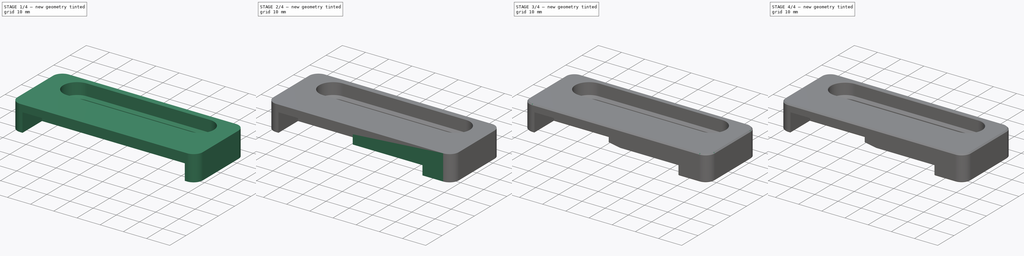
[diagram: build sequence overview — one tinted view per stage of 4, left to right]
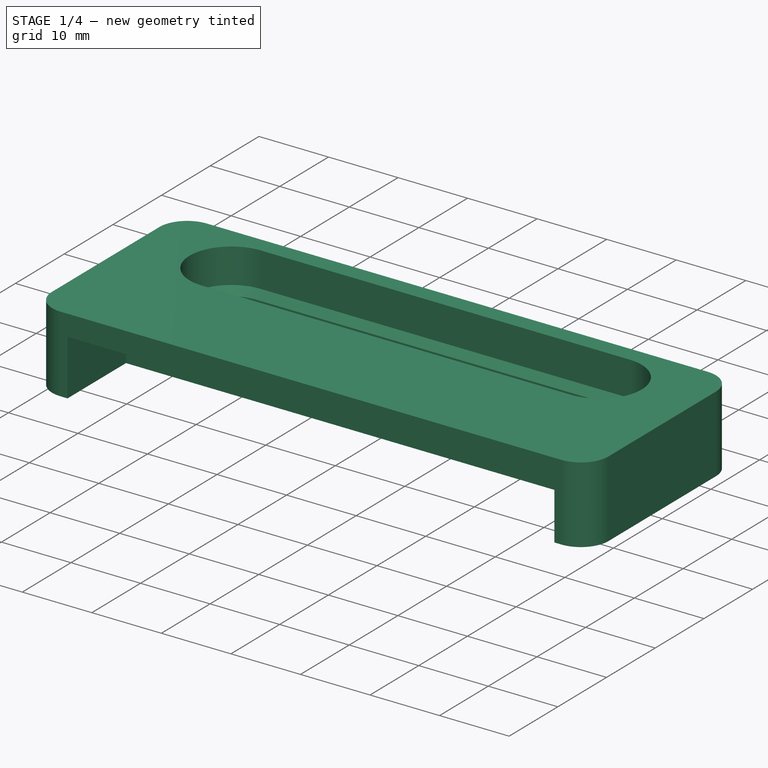
[diagram: stage 1 of 4 — iso view after this stage's code; geometry added in this stage tinted green]
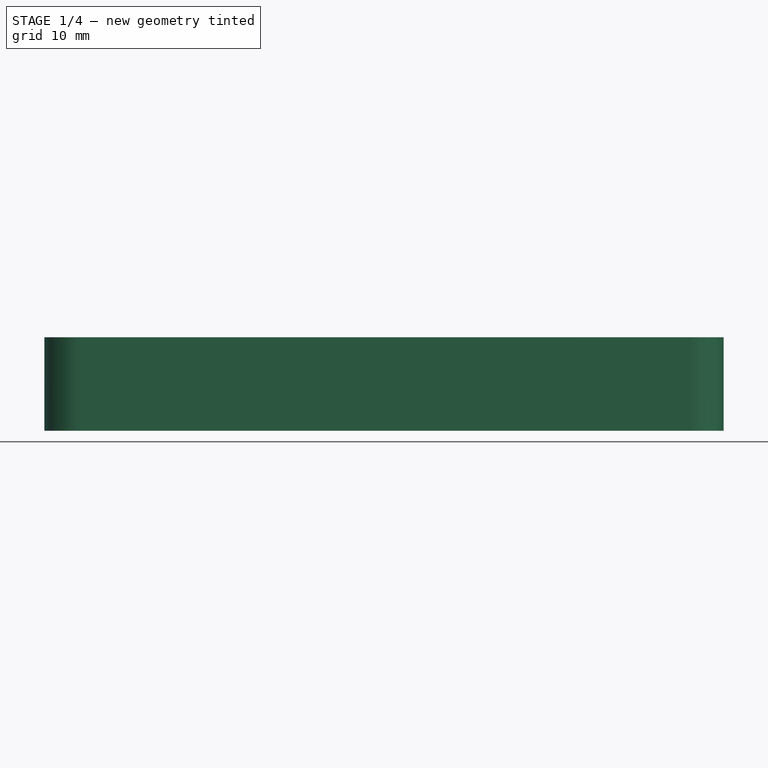
[diagram: stage 1 of 4 — front view after this stage's code; geometry added in this stage tinted green]
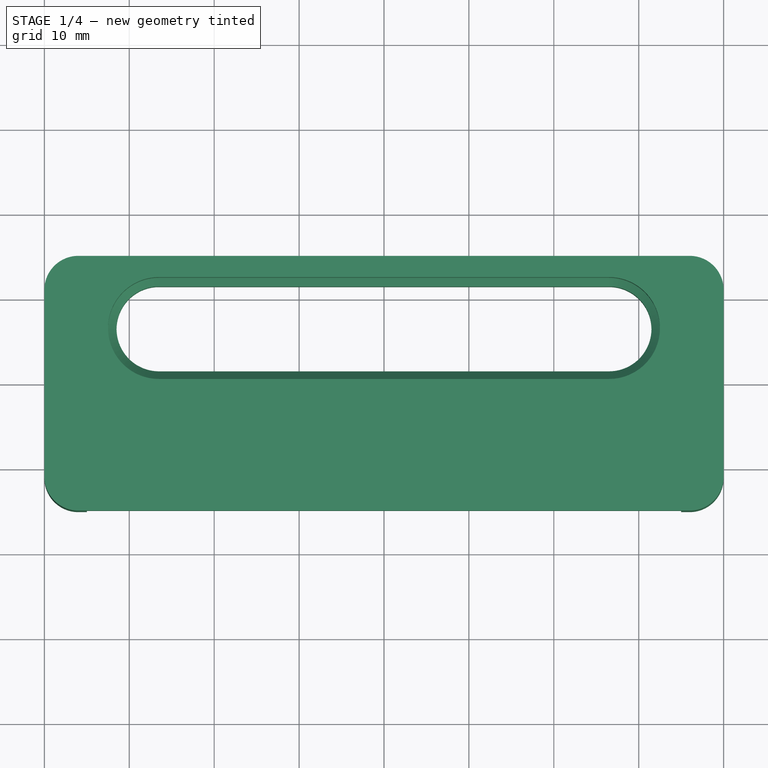
[diagram: stage 1 of 4 — top view after this stage's code; geometry added in this stage tinted green]
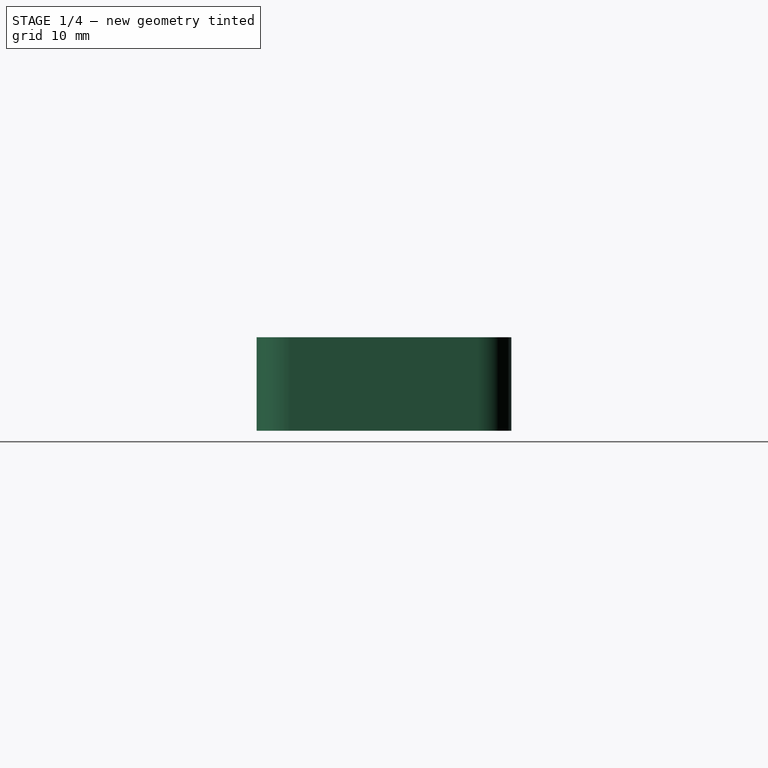
[diagram: stage 1 of 4 — right view after this stage's code; geometry added in this stage tinted green]
FCSTD DOCUMENT  (FreeCAD 0.22R38314 (Git))
Label: Case_Latch
License: All rights reserved
LicenseURL: https://en.wikipedia.org/wiki/All_rights_reserved
objects: Sketcher::SketchObject×6, PartDesign::Chamfer×5, PartDesign::Pad×3, PartDesign::Pocket×2, PartDesign::AdditivePipe×1, PartDesign::Fillet×1, PartDesign::Body×1
note: 43 computed .brp shape members not serialized (recipe doc carries the construction recipe); baked Part::Feature solids carry a one-line shape summary decoded from their .brp

FEATURE [Sketcher::SketchObject] Sketch  label="Top_Face_Sketch"
  AttachmentSupport = -> [XY_Plane]
  FullyConstrained = true
  MapMode = 5
  expr: Constraints[39] = 65 mm - .Constraints.slot_height
  sketch-geometry (16):
    g0: LineSegment StartX=-36 StartY=15 StartZ=0 EndX=36 EndY=15 EndZ=0
    g1: ArcOfCircle CenterX=36 CenterY=11 CenterZ=0 NormalX=0 NormalY=0 NormalZ=1 AngleXU=0 Radius=4 StartAngle=1e-16 EndAngle=1.5708
    g2: LineSegment StartX=40 StartY=11 StartZ=0 EndX=40 EndY=-11 EndZ=0
    g3: ArcOfCircle CenterX=36 CenterY=-11 CenterZ=0 NormalX=0 NormalY=0 NormalZ=1 AngleXU=0 Radius=4 StartAngle=4.71239 EndAngle=6.28319
    g4: LineSegment StartX=36 StartY=-15 StartZ=0 EndX=-36 EndY=-15 EndZ=0
    g5: ArcOfCircle CenterX=-36 CenterY=-11 CenterZ=0 NormalX=0 NormalY=0 NormalZ=1 AngleXU=0 Radius=4 StartAngle=3.14159 EndAngle=4.71239
    g6: LineSegment StartX=-40 StartY=-11 StartZ=0 EndX=-40 EndY=11 EndZ=0
    g7: ArcOfCircle CenterX=-36 CenterY=11 CenterZ=0 NormalX=0 NormalY=0 NormalZ=1 AngleXU=0 Radius=4 StartAngle=1.5708 EndAngle=3.14159
    g8: LineSegment StartX=-36 StartY=-11 StartZ=0 EndX=0 EndY=1.8e-15 EndZ=0
    g9: LineSegment StartX=0 StartY=1.8e-15 StartZ=0 EndX=36 EndY=11 EndZ=0
    g10: ArcOfCircle CenterX=-26.5 CenterY=6.5 CenterZ=0 NormalX=0 NormalY=0 NormalZ=1 AngleXU=0 Radius=6 StartAngle=1.5708 EndAngle=4.71239
    g11: ArcOfCircle CenterX=26.5 CenterY=6.5 CenterZ=0 NormalX=0 NormalY=0 NormalZ=1 AngleXU=0 Radius=6 StartAngle=4.71239 EndAngle=7.85398
    g12: LineSegment StartX=-26.5 StartY=12.5 StartZ=0 EndX=26.5 EndY=12.5 EndZ=0
    g13: LineSegment StartX=-26.5 StartY=0.5 StartZ=0 EndX=26.5 EndY=0.5 EndZ=0
    g14: LineSegment StartX=-26.5 StartY=6.5 StartZ=0 EndX=0 EndY=6.5 EndZ=0
    g15: LineSegment StartX=26.5 StartY=6.5 StartZ=0 EndX=0 EndY=6.5 EndZ=0
  constraints (40):
    c: Horizontal(g0)
    c: Tangent(g0,g1) = 1.5708
    c: Tangent(g1,g2) = 1.5708
    c: Tangent(g2,g3) = 1.5708
    c: Tangent(g3,g4) = 1.5708
    c: Tangent(g4,g5) = 1.5708
    c: Tangent(g5,g6) = 1.5708
    c: Tangent(g6,g7) = 1.5708
    c: Horizontal(g4)
    c: Vertical(g6)
    c: Vertical(g2)
    c: Radius(g5) = 4
    c: Equal(g7,g5)
    c: Equal(g5,g3)
    c: Equal(g5,g1)
    c: Tangent(g7,g0) = 1.5708
    c: Distance(g6,g2) = 80
    c: Distance(g0,g4) = 30
    c: Coincident(g8,g5)
    c: Coincident(g9,g8)
    c: Coincident(g9,g1)
    c: Parallel(g8,g9)
    c: Equal(g9,g8)
    c: Coincident(g8,g-1)
    c: Tangent(g10,g12) = 1.5708
    c: Tangent(g10,g13) = -1.5708
    c: Tangent(g11,g12) = 1.5708
    c: Tangent(g11,g13) = -1.5708
    c: Equal(g10,g11)
    c: Horizontal(g12)
    c: Distance(g12,g13) = 12  'slot_height'
    c: Coincident(g14,g10)
    c: PointOnObject(g14,g-2)
    c: Horizontal(g14)
    c: Coincident(g15,g11)
    c: Coincident(g15,g14)
    c: Equal(g14,g15)
    c: Distance(g0,g12) = 2.5
    c: DistanceY(g11,g11) = 6
    c: DistanceX(g10,g11) = 53
FEATURE [PartDesign::Pad] Pad  label="Main_Pad"
  Direction = (0,0,1)
  Length = 11
  Length2 = 10
  Profile = -> Sketch
  ReferenceAxis = -> Sketch [N_Axis]
  Refine = true
  Suppressed = false
  Type = 0
FEATURE [Sketcher::SketchObject] Sketch001  label="Slot_Chamfer"
  AttachmentSupport = -> [YZ_Plane]
  ExternalGeometry = -> [Sketch]
  FullyConstrained = true
  MapMode = 5
  Placement = pos=(0,0,0) rot=(0.57735,0.57735,0.57735;2.0944rad)
  sketch-geometry (4):
    g0: LineSegment StartX=0.5 StartY=0 StartZ=0 EndX=1.5 EndY=0 EndZ=0
    g1: LineSegment StartX=1.5 StartY=0 StartZ=0 EndX=1.5 EndY=5 EndZ=0
    g2: LineSegment StartX=1.5 StartY=5 StartZ=0 EndX=0.5 EndY=6 EndZ=0
    g3: LineSegment StartX=0.5 StartY=6 StartZ=0 EndX=0.5 EndY=0 EndZ=0
  constraints (12):
    c: Coincident(g0,g-3)
    c: PointOnObject(g0,g-1)
    c: Coincident(g1,g0)
    c: Vertical(g1)
    c: Coincident(g3,g0)
    c: Vertical(g3)
    c: Coincident(g2,g3)
    c: Angle(g3,g2) = 0.785398
    c: Coincident(g1,g2)
    c: DistanceX(g0,g0) = 1
    c: DistanceY(g3,g3) = 6
    c: DistanceY(g1,g1) = 5
FEATURE [PartDesign::AdditivePipe] AdditivePipe  label="Slot_Chamfer_Pipe"
  AuxilleryCurvelinear = true
  AuxillerySpineTangent = false
  BaseFeature = -> Pad
  Binormal = (0,0,0)
  Mode = 0
  Profile = -> Sketch001
  Refine = true
  Spine = -> Sketch [Edge10,Edge9,Edge12,Edge11]
  SpineTangent = false
  Suppressed = false
  Transformation = 0
  Transition = 0
FEATURE [Sketcher::SketchObject] Sketch002  label="Latch_Main_Cavity_Sketch"
  AttachmentSupport = -> [XY_Plane]
  ExternalGeometry = -> [Sketch]
  FullyConstrained = true
  MapMode = 5
  sketch-geometry (4):
    g0: LineSegment StartX=-35 StartY=-15 StartZ=0 EndX=35 EndY=-15 EndZ=0
    g1: LineSegment StartX=35 StartY=-15 StartZ=0 EndX=35 EndY=-3 EndZ=0
    g2: LineSegment StartX=35 StartY=-3 StartZ=0 EndX=-35 EndY=-3 EndZ=0
    g3: LineSegment StartX=-35 StartY=-3 StartZ=0 EndX=-35 EndY=-15 EndZ=0
  constraints (12):
    c: Coincident(g0,g1)
    c: Coincident(g1,g2)
    c: Coincident(g2,g3)
    c: Coincident(g3,g0)
    c: Horizontal(g0)
    c: Horizontal(g2)
    c: Vertical(g1)
    c: Vertical(g3)
    c: PointOnObject(g0,g-3)
    c: Distance(g-9,g1) = 5
    c: Distance(g-5,g3) = 5
    c: Distance(g3,g3) = 12
FEATURE [PartDesign::Pocket] Pocket  label="Latch_Main_Cavity_Pocket"
  BaseFeature = -> AdditivePipe
  Direction = (0,0,-1)
  Length = 0
  Length2 = 5
  Offset = -3
  Profile = -> Sketch002
  ReferenceAxis = -> Sketch002 [N_Axis]
  Refine = true
  Suppressed = false
  Type = 3
  UpToFace = -> AdditivePipe [Face9]
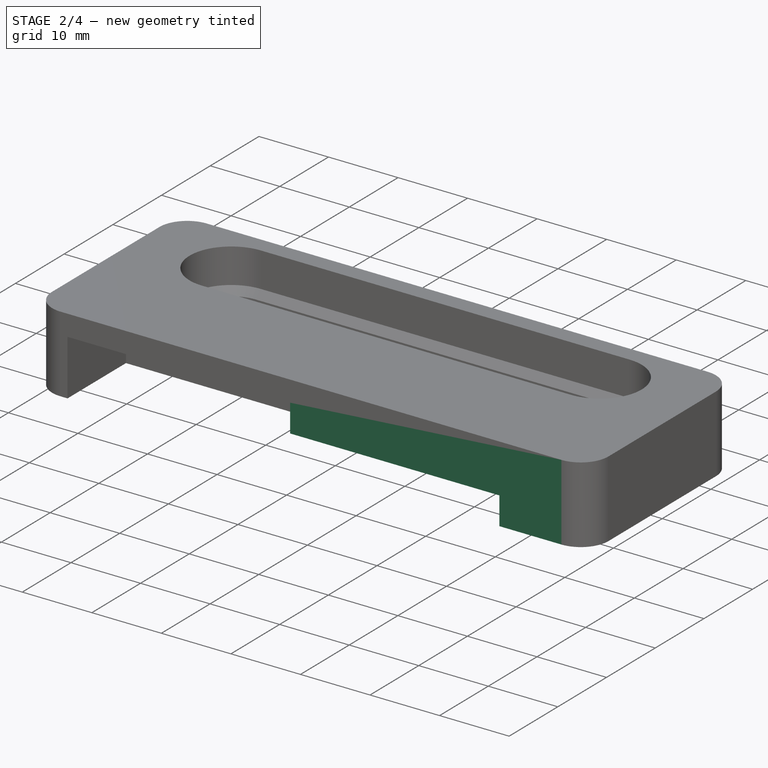
[diagram: stage 2 of 4 — iso view after this stage's code; geometry added in this stage tinted green]
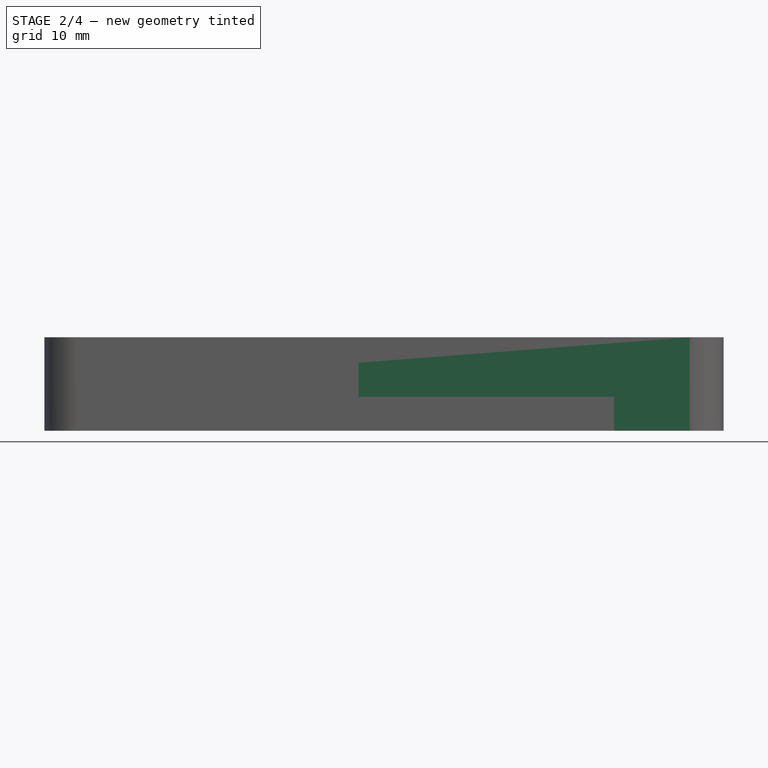
[diagram: stage 2 of 4 — front view after this stage's code; geometry added in this stage tinted green]
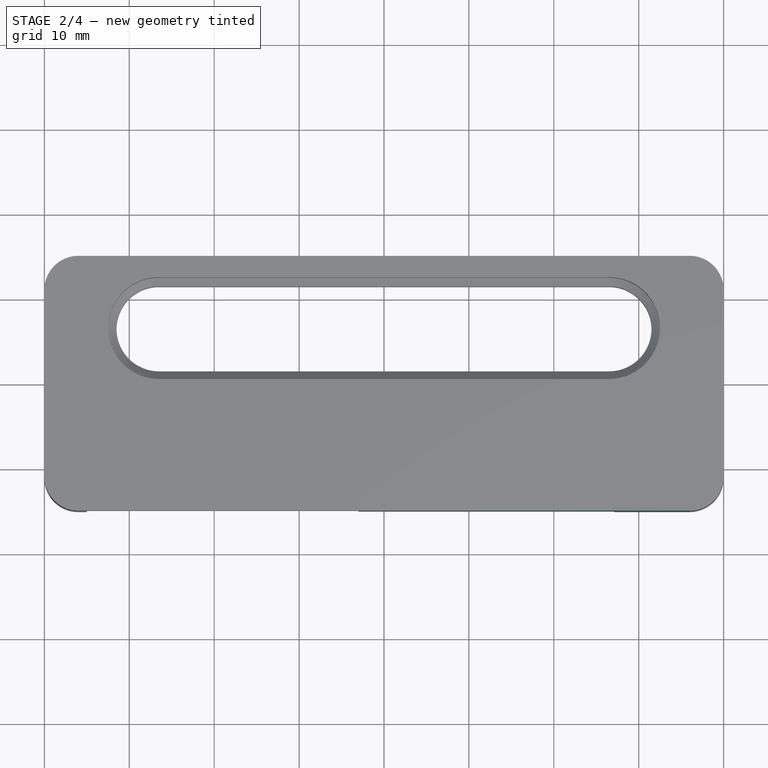
[diagram: stage 2 of 4 — top view after this stage's code; geometry added in this stage tinted green]
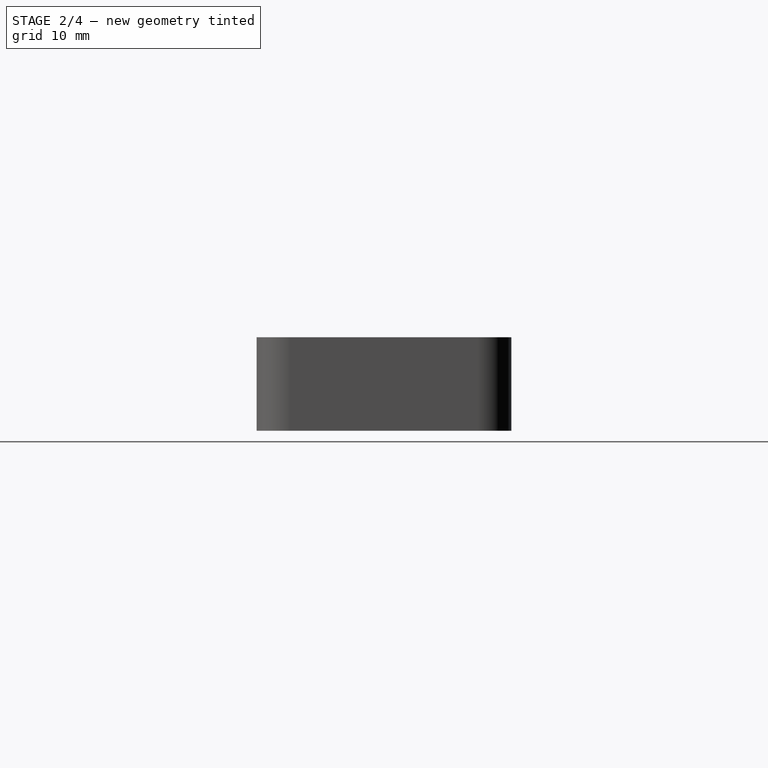
[diagram: stage 2 of 4 — right view after this stage's code; geometry added in this stage tinted green]
FEATURE [Sketcher::SketchObject] Sketch003  label="Latch_Shoulder_Sketch"
  AttachmentSupport = -> [Pocket]
  ExternalGeometry = -> [Pocket]
  FullyConstrained = true
  MapMode = 5
  Placement = pos=(0,0,8) rot=(1,0,0;3.14159rad)
  sketch-geometry (4):
    g0: LineSegment StartX=35 StartY=15 StartZ=0 EndX=-3 EndY=15 EndZ=0
    g1: LineSegment StartX=-3 StartY=15 StartZ=0 EndX=-3 EndY=7 EndZ=0
    g2: LineSegment StartX=-3 StartY=7 StartZ=0 EndX=35 EndY=7 EndZ=0
    g3: LineSegment StartX=35 StartY=7 StartZ=0 EndX=35 EndY=15 EndZ=0
  constraints (11):
    c: Coincident(g0,g1)
    c: Coincident(g1,g2)
    c: Coincident(g2,g3)
    c: Coincident(g3,g0)
    c: Horizontal(g0)
    c: Horizontal(g2)
    c: Vertical(g1)
    c: Vertical(g3)
    c: Coincident(g0,g-4)
    c: DistanceY(g1,g1) = 8
    c: DistanceX(g2,g2) = 38
FEATURE [PartDesign::Pad] Pad001  label="Latch_Shoulder_Pad"
  BaseFeature = -> Pocket
  Direction = (0,0,-1)
  Length = 4
  Length2 = 10
  Profile = -> Sketch003
  ReferenceAxis = -> Sketch003 [N_Axis]
  Refine = true
  Suppressed = false
  Type = 0
FEATURE [Sketcher::SketchObject] Sketch004  label="Magent_Sketch"
  AttachmentSupport = -> [Pad001]
  ExternalGeometry = -> [Pad001]
  FullyConstrained = true
  MapMode = 5
  Placement = pos=(0,0,4) rot=(1,0,0;3.14159rad)
  sketch-geometry (3):
    g0: Circle CenterX=13 CenterY=11 CenterZ=0 NormalX=0 NormalY=0 NormalZ=1 AngleXU=0 Radius=3.05
    g1: LineSegment StartX=-3 StartY=7 StartZ=0 EndX=13 EndY=11 EndZ=0
    g2: LineSegment StartX=13 StartY=11 StartZ=0 EndX=-3 EndY=15 EndZ=0
  constraints (7):
    c: Coincident(g1,g-3)
    c: Coincident(g1,g0)
    c: Coincident(g2,g0)
    c: Coincident(g2,g-3)
    c: Equal(g1,g2)
    c: Distance(g0,g-3) = 16
    c: Diameter(g0) = 6.1
FEATURE [PartDesign::Pocket] Pocket001  label="Magnet_Pocket"
  BaseFeature = -> Pad001
  Direction = (0,0,1)
  Length = 3
  Length2 = 5
  Profile = -> Sketch004
  ReferenceAxis = -> Sketch004 [N_Axis]
  Refine = true
  Suppressed = false
  Type = 0
FEATURE [Sketcher::SketchObject] Sketch005
  ExternalGeometry = -> [Sketch003]
  FullyConstrained = true
  MapMode = 5
  Placement = pos=(0,0,4) rot=(1,0,0;3.14159rad)
  sketch-geometry (4):
    g0: LineSegment StartX=35 StartY=15 StartZ=0 EndX=27.1 EndY=15 EndZ=0
    g1: LineSegment StartX=27.1 StartY=15 StartZ=0 EndX=27.1 EndY=7 EndZ=0
    g2: LineSegment StartX=27.1 StartY=7 StartZ=0 EndX=35 EndY=7 EndZ=0
    g3: LineSegment StartX=35 StartY=7 StartZ=0 EndX=35 EndY=15 EndZ=0
  constraints (10):
    c: Coincident(g0,g1)
    c: Coincident(g1,g2)
    c: Coincident(g2,g3)
    c: Coincident(g3,g0)
    c: Horizontal(g0)
    c: Horizontal(g2)
    c: Vertical(g1)
    c: Coincident(g0,g-4)
    c: Coincident(g-3,g2)
    c: DistanceX(g0,g0) = 7.9
FEATURE [PartDesign::Pad] Pad002
  BaseFeature = -> Pocket001
  Direction = (0,0,-1)
  Length = 4
  Length2 = 10
  Profile = -> Sketch005
  ReferenceAxis = -> Sketch005 [N_Axis]
  Refine = true
  Suppressed = false
  Type = 0
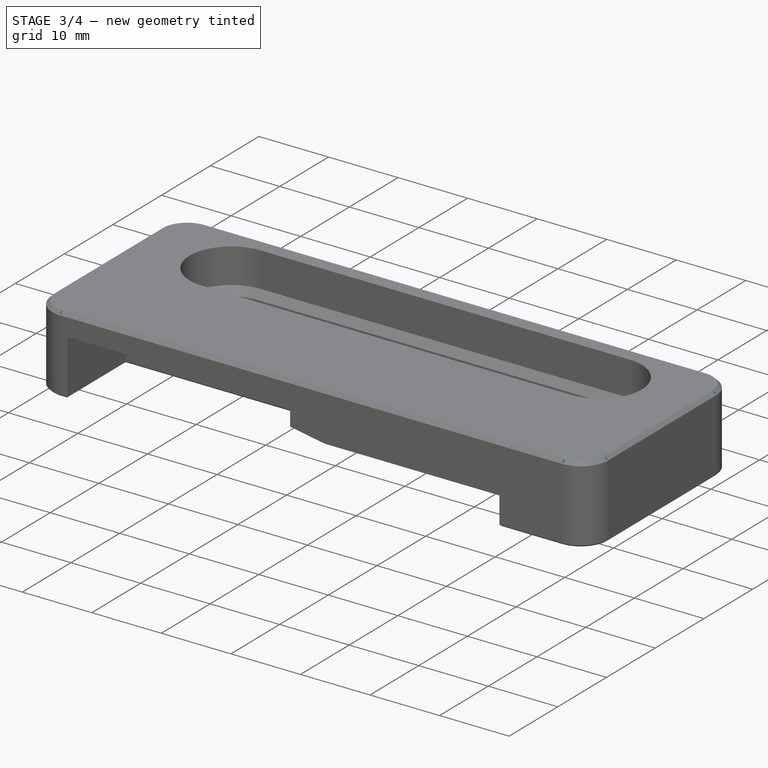
[diagram: stage 3 of 4 — iso view after this stage's code; geometry added in this stage tinted green]
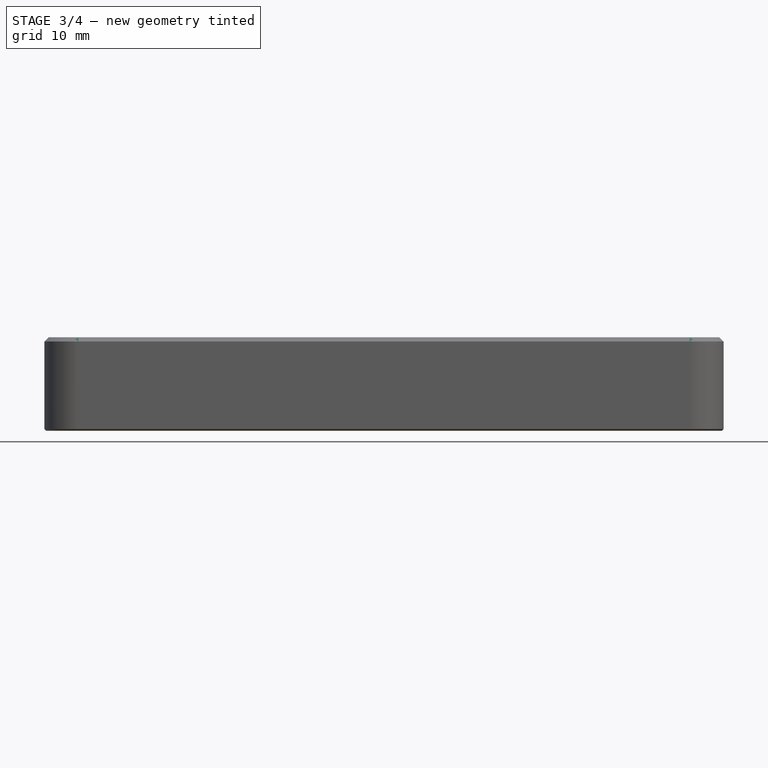
[diagram: stage 3 of 4 — front view after this stage's code; geometry added in this stage tinted green]
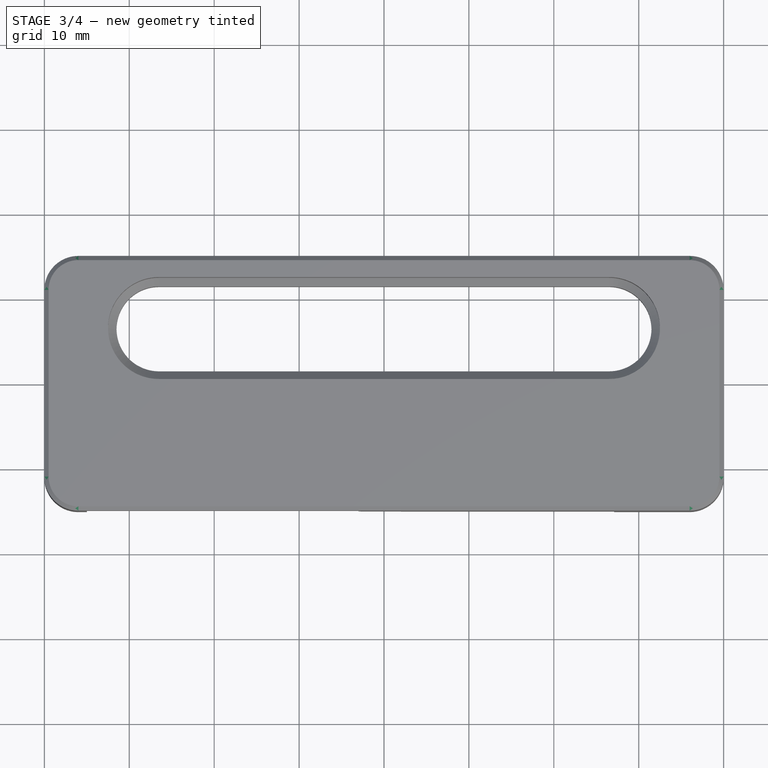
[diagram: stage 3 of 4 — top view after this stage's code; geometry added in this stage tinted green]
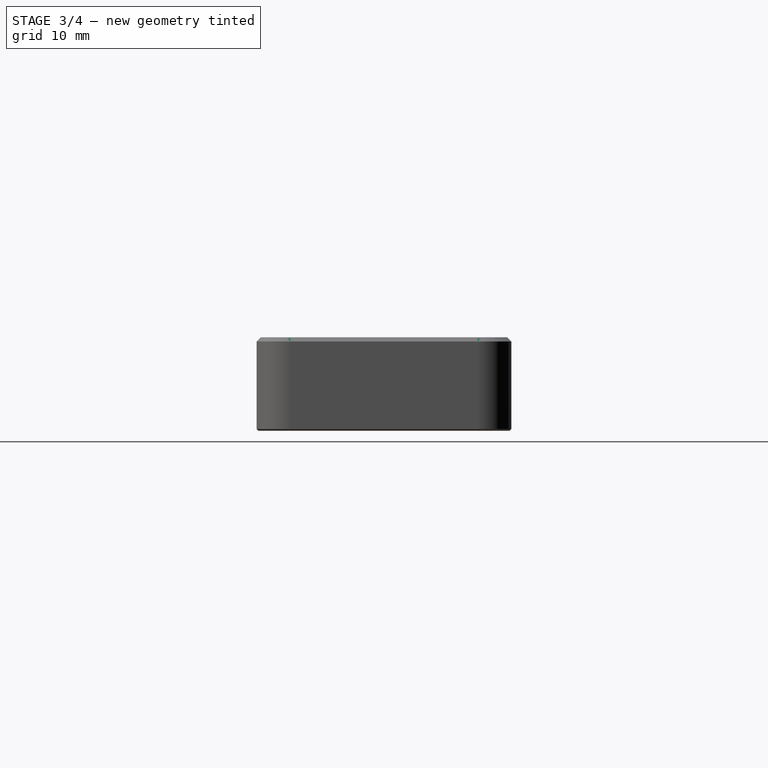
[diagram: stage 3 of 4 — right view after this stage's code; geometry added in this stage tinted green]
FEATURE [PartDesign::Chamfer] Chamfer
  Angle = 45
  Base = -> Pad002 [Edge52,Edge12,Edge9,Edge6,Edge3,Edge15,Edge21,Edge19,Edge58,Edge57,Edge56,Edge55,Edge54,Edge53,Edge41,Edge32,Edge38,Edge28]
  BaseFeature = -> Pad002
  ChamferType = 0
  FlipDirection = false
  Refine = true
  Size = 0.2
  Size2 = 1
  SupportTransform = false
  Suppressed = false
  UseAllEdges = false
FEATURE [PartDesign::Chamfer] Chamfer001
  Angle = 10
  Base = -> Chamfer [Edge90]
  BaseFeature = -> Chamfer
  ChamferType = 2
  FlipDirection = false
  Refine = true
  Size = 5
  Size2 = 1
  SupportTransform = false
  Suppressed = false
  UseAllEdges = false
FEATURE [PartDesign::Chamfer] Chamfer002
  Angle = 45
  Base = -> Chamfer001 [Edge9,Edge37,Edge38,Edge39,Edge34,Edge35,Edge36,Edge30]
  BaseFeature = -> Chamfer001
  ChamferType = 0
  FlipDirection = false
  Refine = true
  Size = 0.5
  Size2 = 1
  SupportTransform = false
  Suppressed = false
  UseAllEdges = false
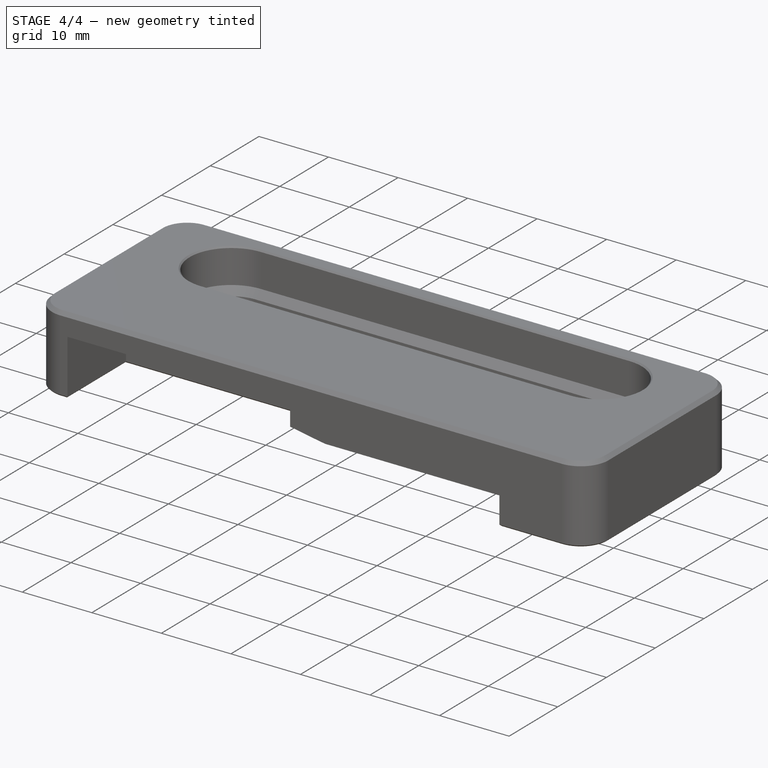
[diagram: stage 4 of 4 — iso view after this stage's code; geometry added in this stage tinted green]
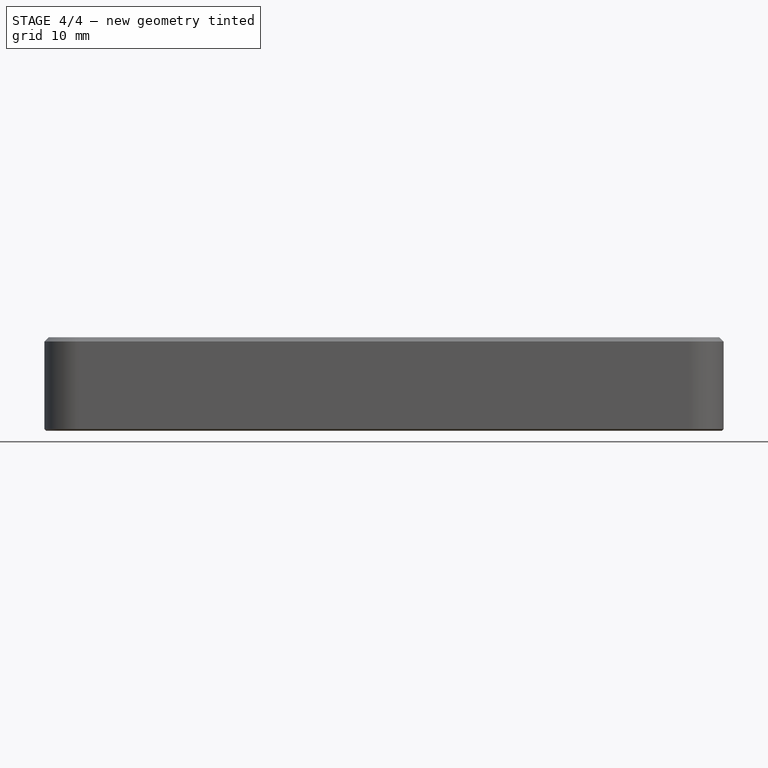
[diagram: stage 4 of 4 — front view after this stage's code; geometry added in this stage tinted green]
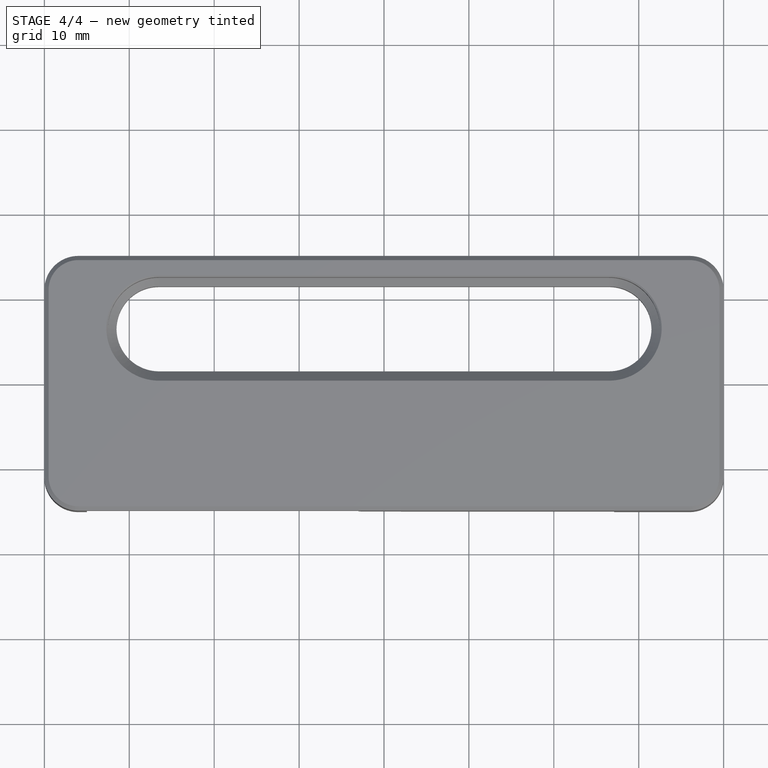
[diagram: stage 4 of 4 — top view after this stage's code; geometry added in this stage tinted green]
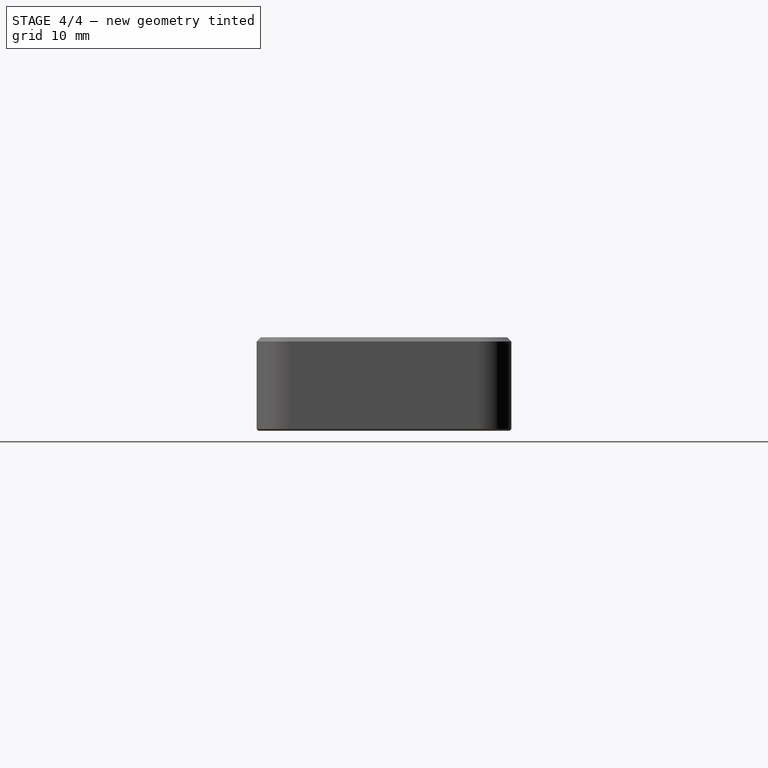
[diagram: stage 4 of 4 — right view after this stage's code; geometry added in this stage tinted green]
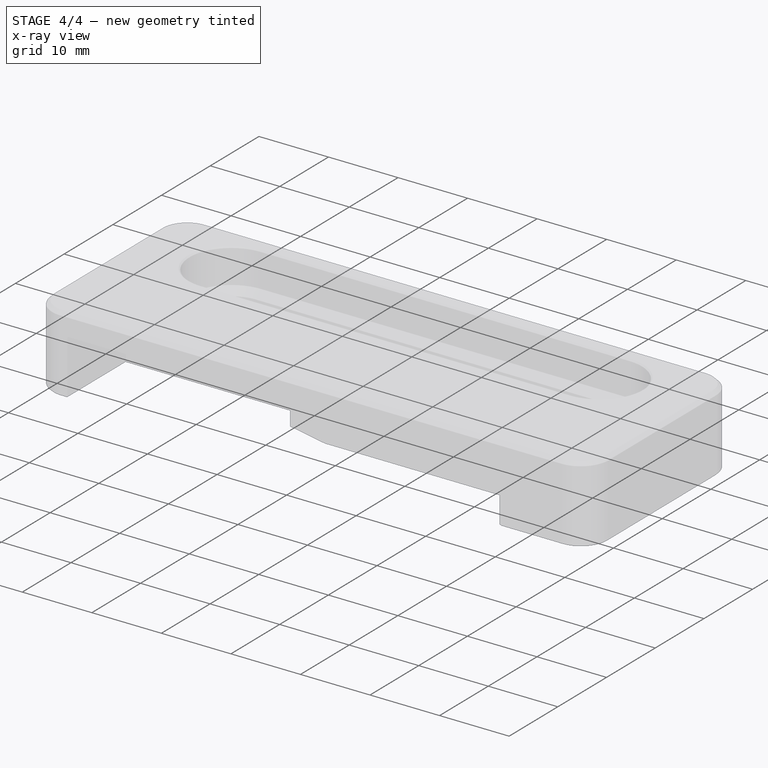
[diagram: stage 4 of 4 — x-ray composite at the iso view; earlier geometry ghosted, this stage's added geometry solid]
FEATURE [PartDesign::Chamfer] Chamfer003
  Angle = 45
  Base = -> Chamfer002 [Edge59,Edge56,Edge57,Edge58]
  BaseFeature = -> Chamfer002
  ChamferType = 0
  FlipDirection = false
  Refine = true
  Size = 0.2
  Size2 = 1
  SupportTransform = false
  Suppressed = false
  UseAllEdges = false
FEATURE [PartDesign::Chamfer] Chamfer004
  Angle = 74
  Base = -> Chamfer003 [Edge97]
  BaseFeature = -> Chamfer003
  ChamferType = 2
  FlipDirection = false
  Refine = true
  Size = 2
  Size2 = 1
  SupportTransform = false
  Suppressed = false
  UseAllEdges = false
FEATURE [PartDesign::Fillet] Fillet
  Base = -> Chamfer004 [Edge10]
  BaseFeature = -> Chamfer004
  Radius = 1
  Refine = true
  SupportTransform = false
  Suppressed = false
  UseAllEdges = false
FEATURE [PartDesign::Body] Body
  AllowCompound = false
  Group = -> [Sketch,Pad,Sketch001,AdditivePipe,Sketch002,Pocket,Sketch003,Pad001,Sketch004,Pocket001,Sketch005,Pad002,Chamfer,Chamfer001,Chamfer002,Chamfer003,Chamfer004,Fillet]
  Origin = -> Origin
  Tip = -> Fillet
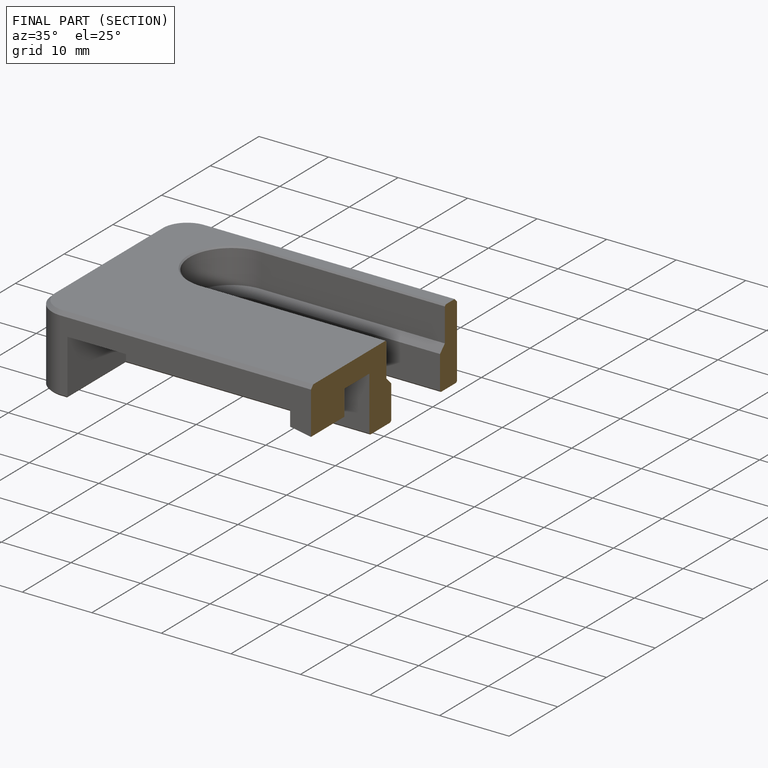
[diagram: finished part — half-section view (interior)]
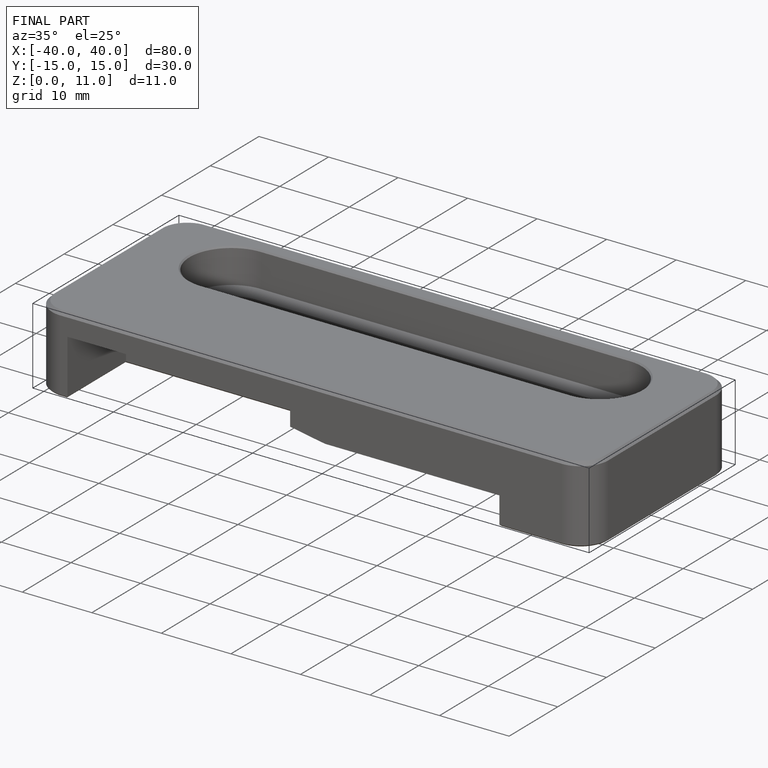
[diagram: finished part — iso view with bounding-box wireframe]
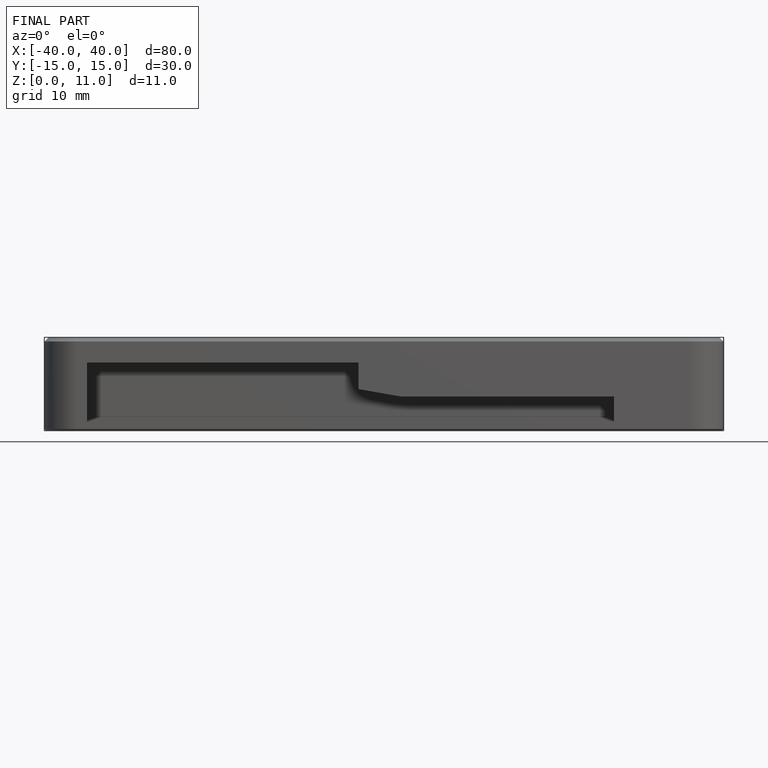
[diagram: finished part — front view with bounding-box wireframe]
